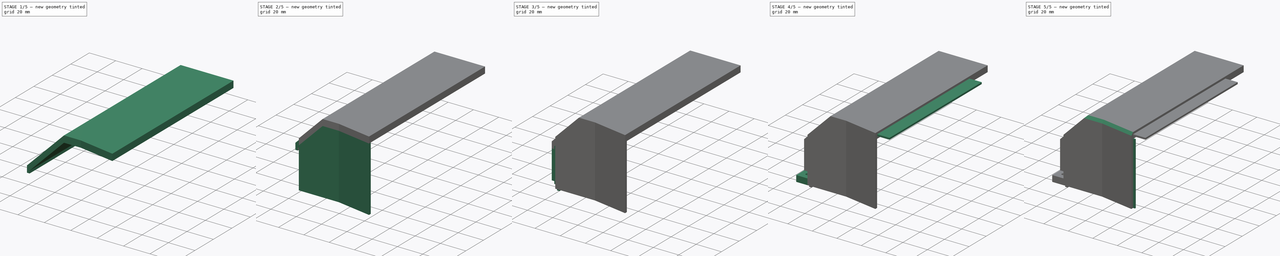
[diagram: build sequence overview — one tinted view per stage of 5, left to right]
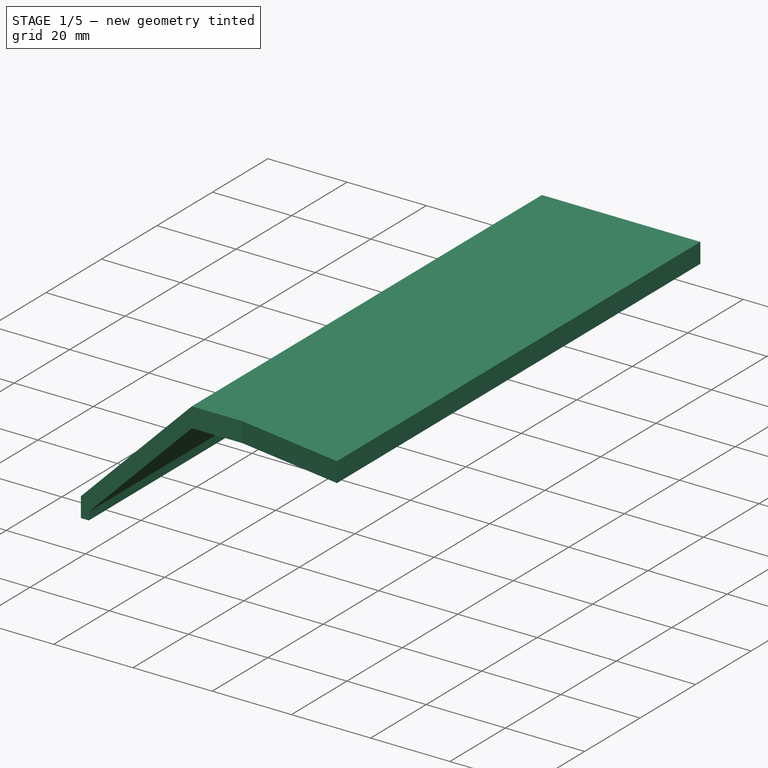
[diagram: stage 1 of 5 — iso view after this stage's code; geometry added in this stage tinted green]
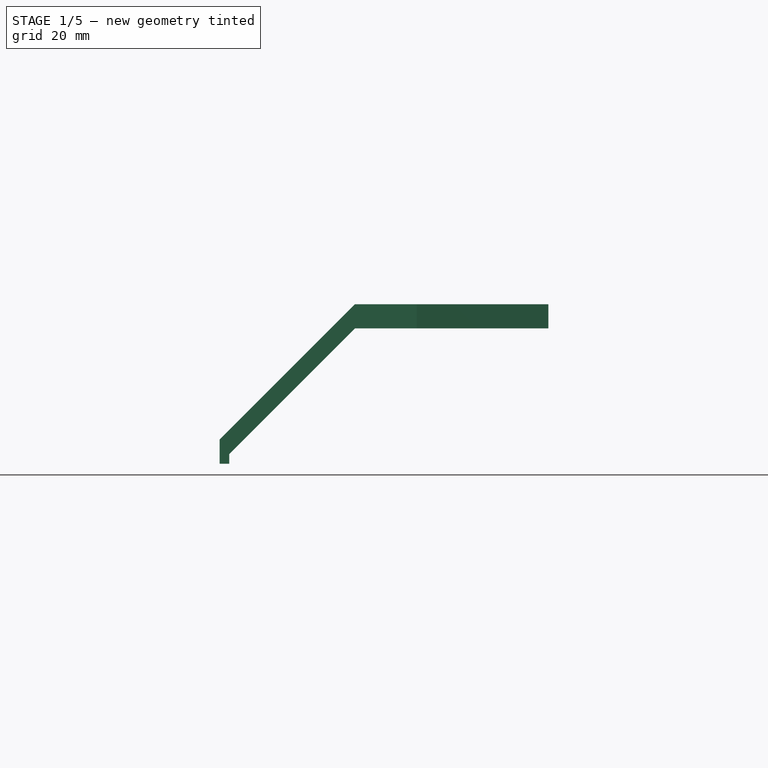
[diagram: stage 1 of 5 — front view after this stage's code; geometry added in this stage tinted green]
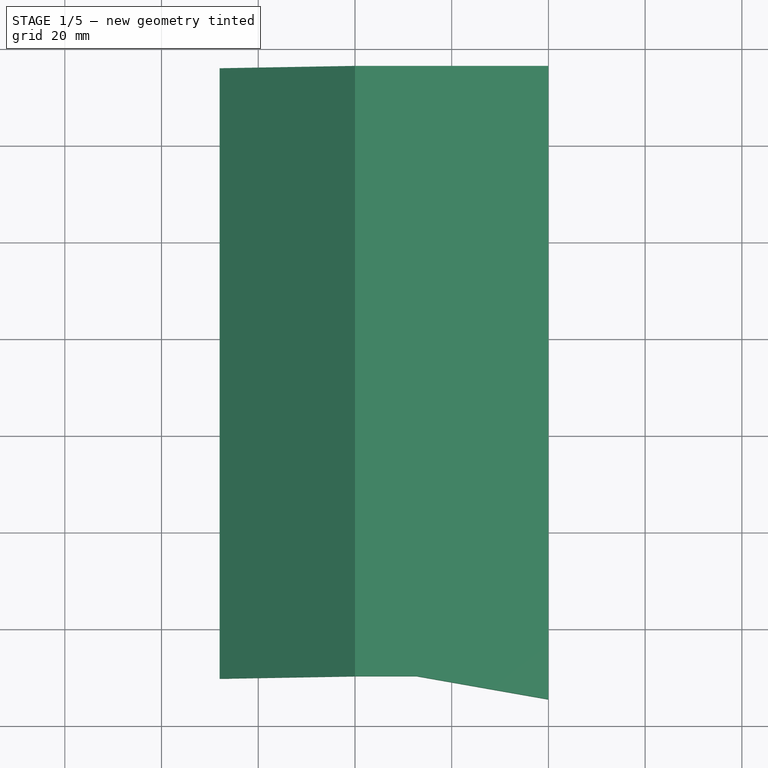
[diagram: stage 1 of 5 — top view after this stage's code; geometry added in this stage tinted green]
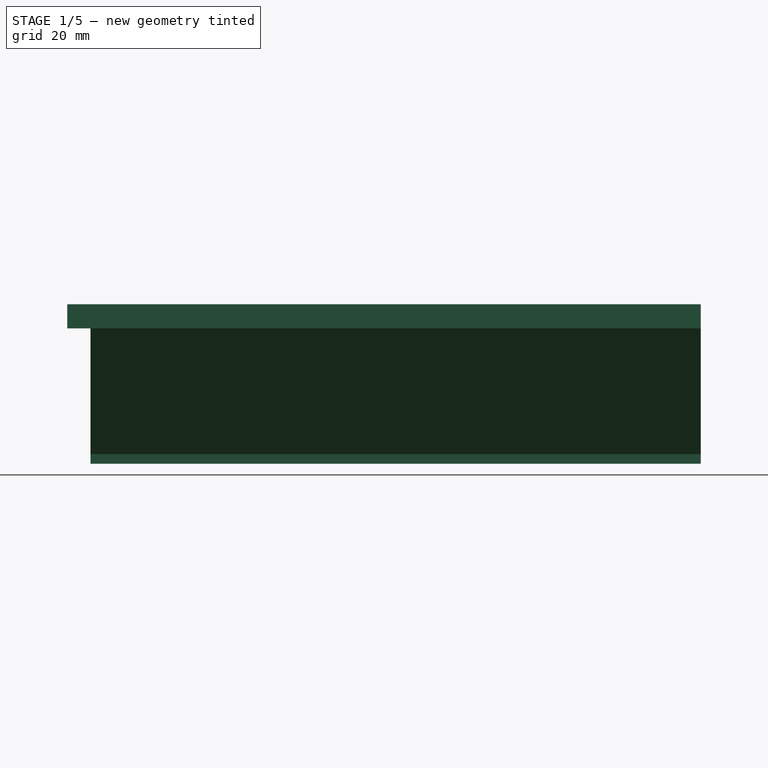
[diagram: stage 1 of 5 — right view after this stage's code; geometry added in this stage tinted green]
FCSTD DOCUMENT  (FreeCAD 2022.430R26244 +4758 (Git))
Label: SecondPartPeripheralsTop
License: All rights reserved
LicenseURL: http://en.wikipedia.org/wiki/All_rights_reserved
objects: Sketcher::SketchObject×14, PartDesign::Pad×11, PartDesign::Pocket×3, PartDesign::CoordinateSystem×1, PartDesign::Chamfer×1, PartDesign::Body×1, App::Part×1
note: 61 computed .brp shape members not serialized (recipe doc carries the construction recipe); baked Part::Feature solids carry a one-line shape summary decoded from their .brp

FEATURE [PartDesign::CoordinateSystem] LCS_0
  AttacherType = Attacher::AttachEngine3D
  MapMode = 2
  Support = -> [X_Axis001]
  TreeRank = 0
FEATURE [Sketcher::SketchObject] Sketch_1
  FullyConstrained = true
  TreeRank = 0
  sketch-geometry (4):
    g0: LineSegment StartX=0 StartY=0 StartZ=0 EndX=-40 EndY=0 EndZ=0
    g1: LineSegment StartX=-40 StartY=0 StartZ=0 EndX=-40 EndY=116 EndZ=0
    g2: LineSegment StartX=-40 StartY=116 StartZ=0 EndX=0 EndY=116 EndZ=0
    g3: LineSegment StartX=0 StartY=116 StartZ=0 EndX=0 EndY=0 EndZ=0
  constraints (11):
    c: Coincident(g0,g1)
    c: Coincident(g1,g2)
    c: Coincident(g2,g3)
    c: Coincident(g3,g0)
    c: Horizontal(g0)
    c: Horizontal(g2)
    c: Vertical(g1)
    c: Vertical(g3)
    c: Coincident(g0,g-1)
    c: DistanceY(g3,g3) = 116
    c: DistanceX(g2,g2) = 40
FEATURE [PartDesign::Pad] Pad  label="MainSupport"
  AddSubType = 0
  CheckUpToFaceLimits = true
  ClaimChildren = false
  Direction = (0,0,1)
  Fit = 0
  FitJoin = 0
  InnerFit = 0
  InnerFitJoin = 0
  InnerTaperAngle = 0
  InnerTaperAngleRev = 0
  Length = 5
  Length2 = 100
  NewSolid = false
  Profile = -> Sketch_1
  Suppress = false
  TreeRank = 0
  Type = 0
  _ProfileBasedVersion = 0
FEATURE [Sketcher::SketchObject] Sketch
  ExternalGeometry = -> [Pad]
  FullyConstrained = true
  MapMode = 5
  Support = -> [XY_Plane001]
  TreeRank = 1
  sketch-geometry (5):
    g0: LineSegment StartX=0 StartY=0 StartZ=0 EndX=-40 EndY=0 EndZ=0
    g1: LineSegment StartX=-40 StartY=0 StartZ=0 EndX=-40 EndY=-10.2 EndZ=0
    g2: LineSegment StartX=0 StartY=-15 StartZ=0 EndX=0 EndY=0 EndZ=0
    g3: LineSegment StartX=0 StartY=-15 StartZ=0 EndX=-27.2222 EndY=-10.2 EndZ=0
    g4: LineSegment StartX=-40 StartY=-10.2 StartZ=0 EndX=-27.2222 EndY=-10.2 EndZ=0
  constraints (14):
    c: Coincident(g2,g0)
    c: Vertical(g1)
    c: Vertical(g2)
    c: Coincident(g0,g-1)
    c: DistanceY(g2,g2) = 15
    c: DistanceY(g1,g1) = 10.2
    c: Coincident(g3,g2)
    c: Angle(g2,g3) = 1.39626
    c: Horizontal(g0)
    c: Coincident(g1,g0)
    c: Coincident(g4,g1)
    c: Coincident(g4,g3)
    c: Horizontal(g4)
    c: DistanceX(g0,g0) = 40
FEATURE [PartDesign::Pad] Pad001  label="ExtraPeripheralsSize"
  AddSubType = 0
  AlongSketchNormal = false
  BaseFeature = -> Pad
  CheckUpToFaceLimits = true
  ClaimChildren = false
  Direction = (0,0,1)
  Fit = 0
  FitJoin = 0
  InnerFit = 0
  InnerFitJoin = 0
  InnerTaperAngle = 0
  InnerTaperAngleRev = 0
  Length = 5
  Length2 = 100
  Linearize = true
  NewSolid = false
  Profile = -> Sketch
  Suppress = false
  TreeRank = 2
  Type = 0
  _ProfileBasedVersion = 1
FEATURE [Sketcher::SketchObject] Sketch001
  ExternalGeometry = -> [Pad001]
  FullyConstrained = true
  MapMode = 5
  Placement = pos=(0,-10.2,0) rot=(1,0,0;1.5708rad)
  Support = -> [Pad001]
  TreeRank = 3
  sketch-geometry (7):
    g0: LineSegment StartX=-40 StartY=5 StartZ=0 EndX=-68 EndY=-23 EndZ=0
    g1: LineSegment StartX=-68 StartY=-23 StartZ=0 EndX=-68 EndY=-28 EndZ=0
    g2: LineSegment StartX=-40 StartY=5 StartZ=0 EndX=-40 EndY=0 EndZ=0
    g3: LineSegment StartX=-68 StartY=-28 StartZ=0 EndX=-66 EndY=-28 EndZ=0
    g4: LineSegment StartX=-66 StartY=-28 StartZ=0 EndX=-66 EndY=-26 EndZ=0
    g5: LineSegment StartX=-40 StartY=0 StartZ=0 EndX=-66 EndY=-26 EndZ=0
    g6: LineSegment [constr] StartX=-66 StartY=-26 StartZ=0 EndX=-68 EndY=-28 EndZ=0
  constraints (19):
    c: Coincident(g0,g-3)
    c: Coincident(g5,g-3)
    c: Coincident(g1,g0)
    c: Vertical(g1)
    c: DistanceX(g0,g0) = 28
    c: Angle(g0,g-3) = 0.785398
    c: Coincident(g2,g0)
    c: Coincident(g2,g5)
    c: Equal(g2,g1)
    c: DistanceY(g1,g5) = 28
    c: Horizontal(g3)
    c: Coincident(g4,g3)
    c: Vertical(g4)
    c: Coincident(g5,g4)
    c: Coincident(g3,g1)
    c: Coincident(g6,g4)
    c: Coincident(g6,g1)
    c: Parallel(g6,g5)
    c: DistanceX(g3,g3) = 2
FEATURE [PartDesign::Pad] Pad002  label="Slope"
  AddSubType = 0
  AlongSketchNormal = false
  BaseFeature = -> Pad001
  CheckUpToFaceLimits = true
  ClaimChildren = false
  Direction = (0,-1,2e-16)
  Fit = 0
  FitJoin = 0
  InnerFit = 0
  InnerFitJoin = 0
  InnerTaperAngle = 0
  InnerTaperAngleRev = 0
  Length = 10
  Length2 = 100
  Linearize = true
  NewSolid = false
  Profile = -> Sketch001
  Reversed = true
  Suppress = false
  TreeRank = 4
  Type = 3
  UpToFace = -> Pad001 [Face3]
  _ProfileBasedVersion = 1
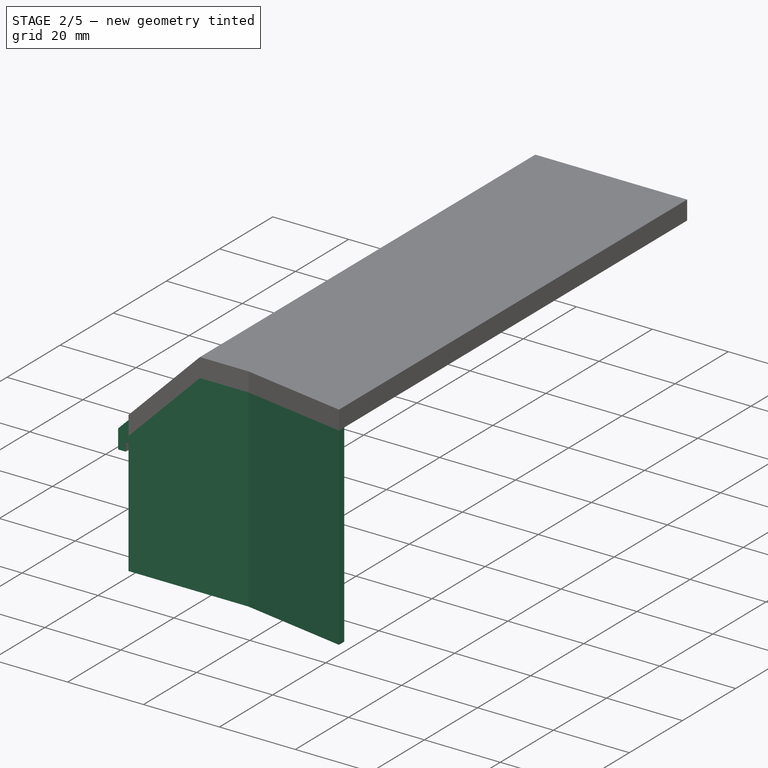
[diagram: stage 2 of 5 — iso view after this stage's code; geometry added in this stage tinted green]
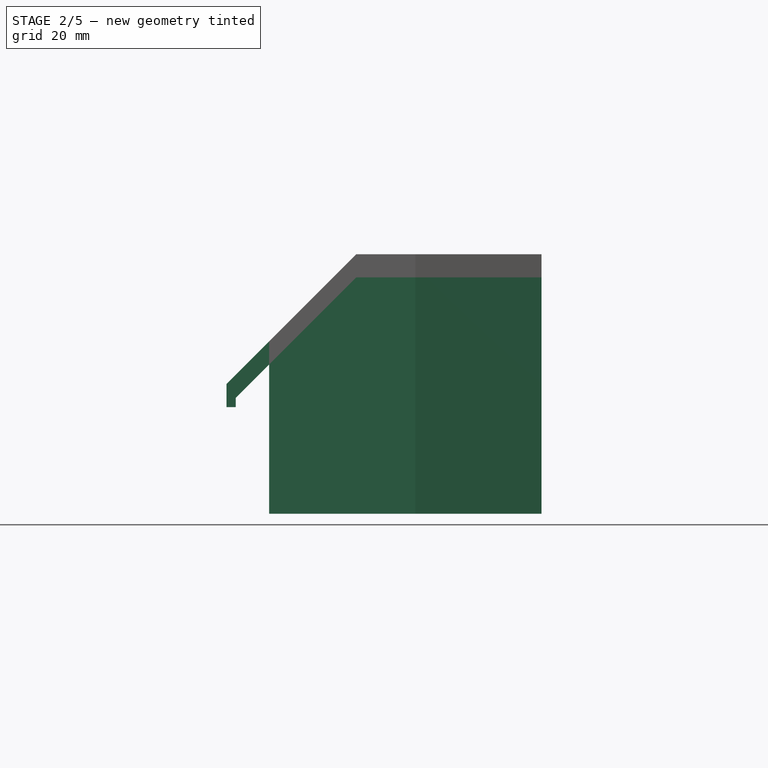
[diagram: stage 2 of 5 — front view after this stage's code; geometry added in this stage tinted green]
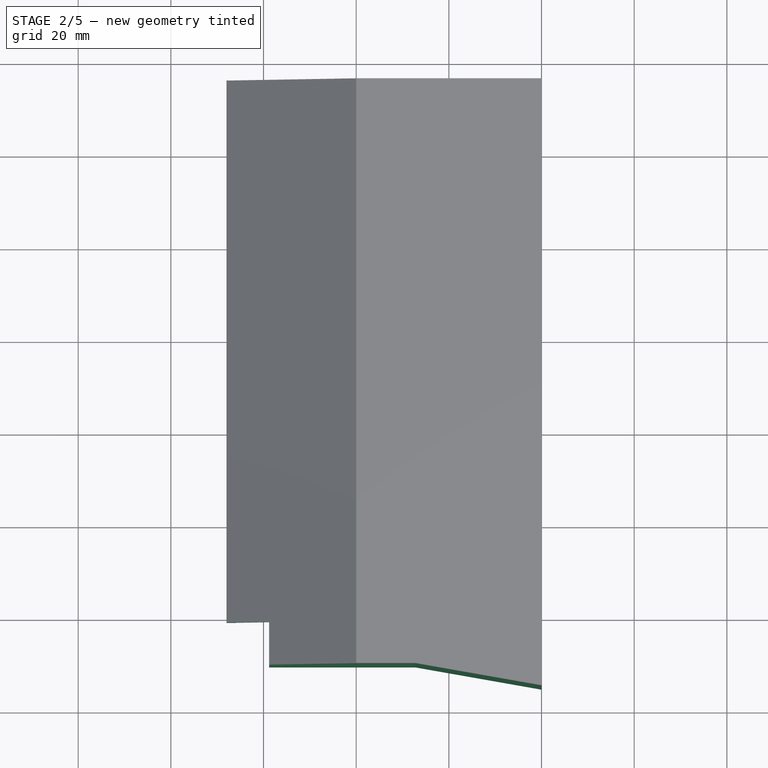
[diagram: stage 2 of 5 — top view after this stage's code; geometry added in this stage tinted green]
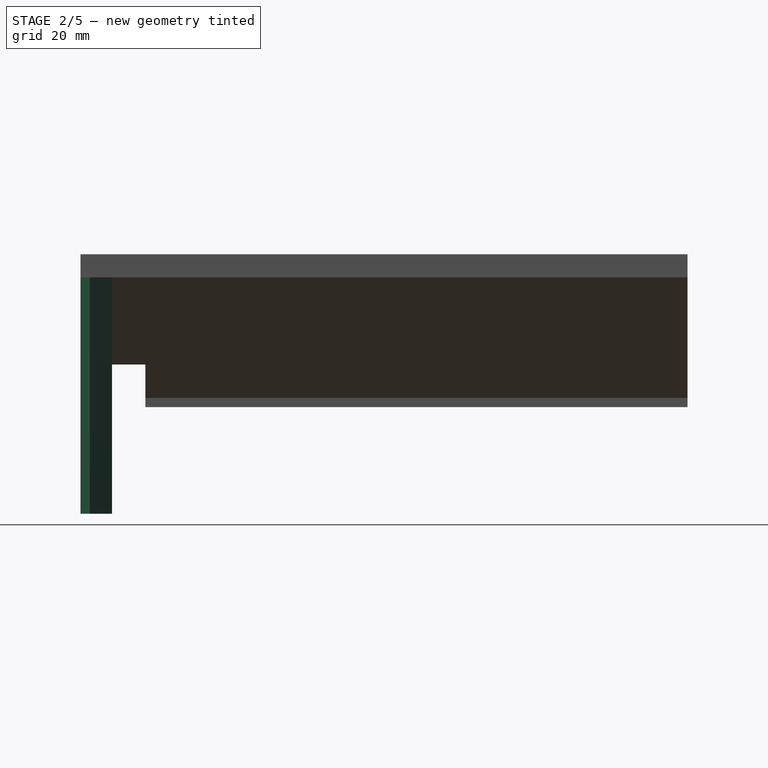
[diagram: stage 2 of 5 — right view after this stage's code; geometry added in this stage tinted green]
FEATURE [Sketcher::SketchObject] Sketch005
  ExternalGeometry = -> [Pad002]
  FullyConstrained = true
  MapMode = 5
  Placement = pos=(0,0,5) rot=(0,0,1;0rad)
  Support = -> [Pad002]
  TreeRank = 11
  sketch-geometry (4):
    g0: LineSegment StartX=-68 StartY=-10.2 StartZ=0 EndX=-58.8 EndY=-10.2 EndZ=0
    g1: LineSegment StartX=-58.8 StartY=-10.2 StartZ=0 EndX=-58.8 EndY=-1 EndZ=0
    g2: LineSegment StartX=-58.8 StartY=-1 StartZ=0 EndX=-68 EndY=-1 EndZ=0
    g3: LineSegment StartX=-68 StartY=-1 StartZ=0 EndX=-68 EndY=-10.2 EndZ=0
  constraints (11):
    c: Coincident(g0,g1)
    c: Coincident(g1,g2)
    c: Coincident(g2,g3)
    c: Coincident(g3,g0)
    c: Horizontal(g0)
    c: Horizontal(g2)
    c: Vertical(g1)
    c: Vertical(g3)
    c: Coincident(g0,g-3)
    c: Equal(g1,g2)
    c: DistanceX(g2,g2) = 9.2
FEATURE [PartDesign::Pocket] Pocket  label="ColumnPartHole"
  AddSubType = 1
  BaseFeature = -> Pad002
  CheckUpToFaceLimits = true
  ClaimChildren = false
  Fit = 0
  FitJoin = 0
  InnerFit = 0
  InnerFitJoin = 0
  InnerTaperAngle = 0
  InnerTaperAngleRev = 0
  Length = 5
  Length2 = 100
  Linearize = true
  NewSolid = false
  Profile = -> Sketch005
  Suppress = false
  TreeRank = 12
  Type = 1
  _ProfileBasedVersion = 1
  _Version = 1
FEATURE [Sketcher::SketchObject] Sketch003
  ExternalGeometry = -> [Pocket]
  FullyConstrained = true
  MapMode = 5
  Placement = pos=(0,-10.2,0) rot=(1,0,0;1.5708rad)
  TreeRank = 7
  sketch-geometry (5):
    g0: LineSegment StartX=-58.8 StartY=-51 StartZ=0 EndX=-58.8 EndY=-18.8 EndZ=0
    g1: LineSegment StartX=-58.8 StartY=-18.8 StartZ=0 EndX=-40 EndY=0 EndZ=0
    g2: LineSegment StartX=-40 StartY=0 StartZ=0 EndX=-27.2222 EndY=0 EndZ=0
    g3: LineSegment StartX=-27.2222 StartY=0 StartZ=0 EndX=-27.2222 EndY=-51 EndZ=0
    g4: LineSegment StartX=-58.8 StartY=-51 StartZ=0 EndX=-27.2222 EndY=-51 EndZ=0
  constraints (12):
    c: Coincident(g0,g-4)
    c: Coincident(g1,g0)
    c: Coincident(g1,g-4)
    c: Coincident(g2,g1)
    c: Coincident(g2,g-3)
    c: Coincident(g3,g2)
    c: Vertical(g3)
    c: Coincident(g4,g0)
    c: Horizontal(g4)
    c: Coincident(g4,g3)
    c: Vertical(g0)
    c: DistanceY(g3,g3) = 51
FEATURE [PartDesign::Pad] Pad004  label="SlopeFrontPanel"
  AddSubType = 0
  AlongSketchNormal = false
  BaseFeature = -> Pocket
  CheckUpToFaceLimits = true
  ClaimChildren = false
  Direction = (0,-1,2e-16)
  Fit = 0
  FitJoin = 0
  InnerFit = 0
  InnerFitJoin = 0
  InnerTaperAngle = 0
  InnerTaperAngleRev = 0
  Length = 2
  Length2 = 100
  Linearize = true
  NewSolid = false
  Profile = -> Sketch003
  Reversed = true
  Suppress = false
  TreeRank = 8
  Type = 0
  _ProfileBasedVersion = 1
FEATURE [Sketcher::SketchObject] Sketch004
  ExternalGeometry = -> [Pad004]
  FullyConstrained = true
  MapMode = 5
  Placement = pos=(0,0,0) rot=(1,0,0;3.14159rad)
  Support = -> [Pad004]
  TreeRank = 9
  sketch-geometry (4):
    g0: LineSegment StartX=-27.2222 StartY=10.2 StartZ=0 EndX=0 EndY=15 EndZ=0
    g1: LineSegment StartX=-27.2222 StartY=8.2 StartZ=0 EndX=-27.2222 EndY=10.2 EndZ=0
    g2: LineSegment StartX=-27.2222 StartY=8.2 StartZ=0 EndX=0 EndY=13 EndZ=0
    g3: LineSegment StartX=0 StartY=13 StartZ=0 EndX=0 EndY=15 EndZ=0
  constraints (9):
    c: Coincident(g0,g-3)
    c: Coincident(g0,g-4)
    c: Coincident(g1,g-3)
    c: Coincident(g1,g0)
    c: Coincident(g2,g1)
    c: PointOnObject(g2,g-4)
    c: Coincident(g3,g2)
    c: Coincident(g3,g0)
    c: DistanceY(g3,g3) = 2
FEATURE [PartDesign::Pad] Pad005  label="AnglePanel"
  AddSubType = 0
  AlongSketchNormal = false
  BaseFeature = -> Pad004
  CheckUpToFaceLimits = true
  ClaimChildren = false
  Direction = (0,0,-1)
  Fit = 0
  FitJoin = 0
  InnerFit = 0
  InnerFitJoin = 0
  InnerTaperAngle = 0
  InnerTaperAngleRev = 0
  Length = 51
  Length2 = 100
  Linearize = true
  NewSolid = false
  Profile = -> Sketch004
  Suppress = false
  TreeRank = 10
  Type = 0
  _ProfileBasedVersion = 1
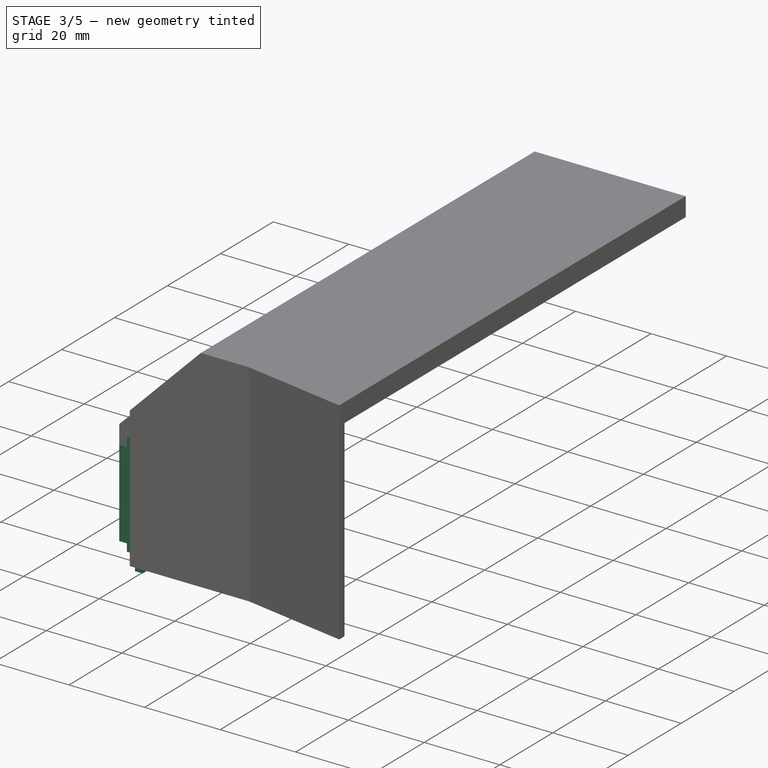
[diagram: stage 3 of 5 — iso view after this stage's code; geometry added in this stage tinted green]
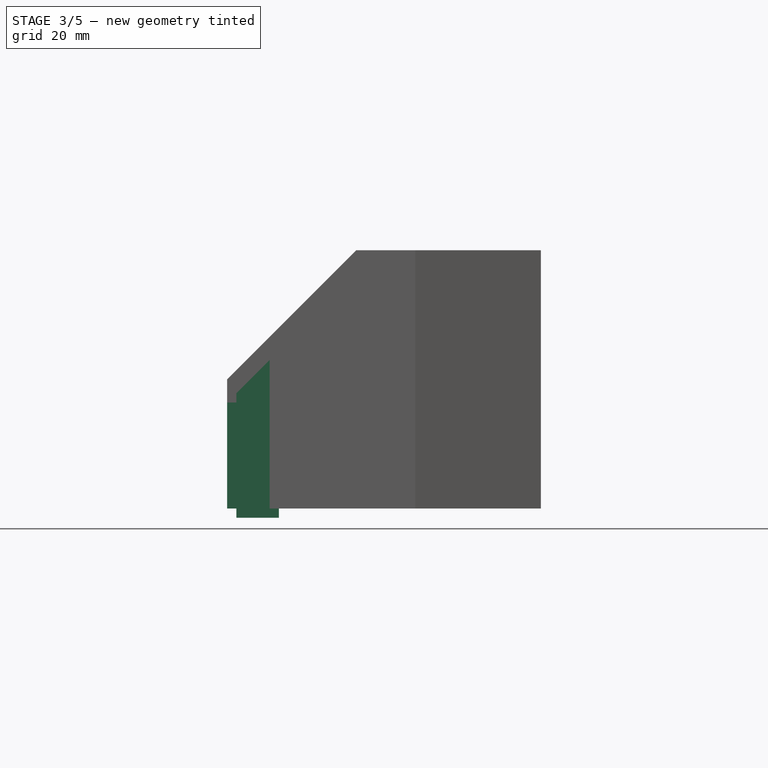
[diagram: stage 3 of 5 — front view after this stage's code; geometry added in this stage tinted green]
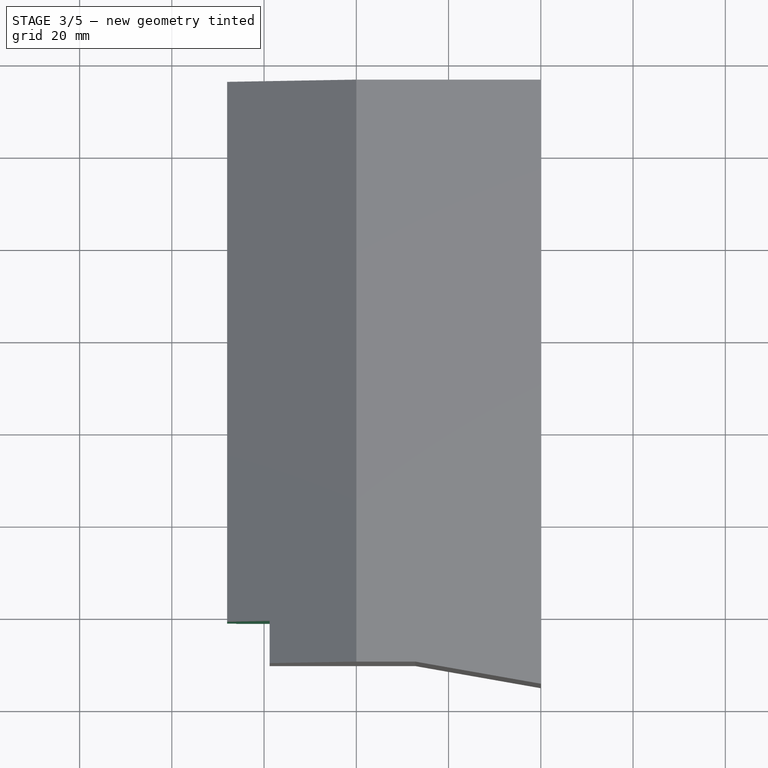
[diagram: stage 3 of 5 — top view after this stage's code; geometry added in this stage tinted green]
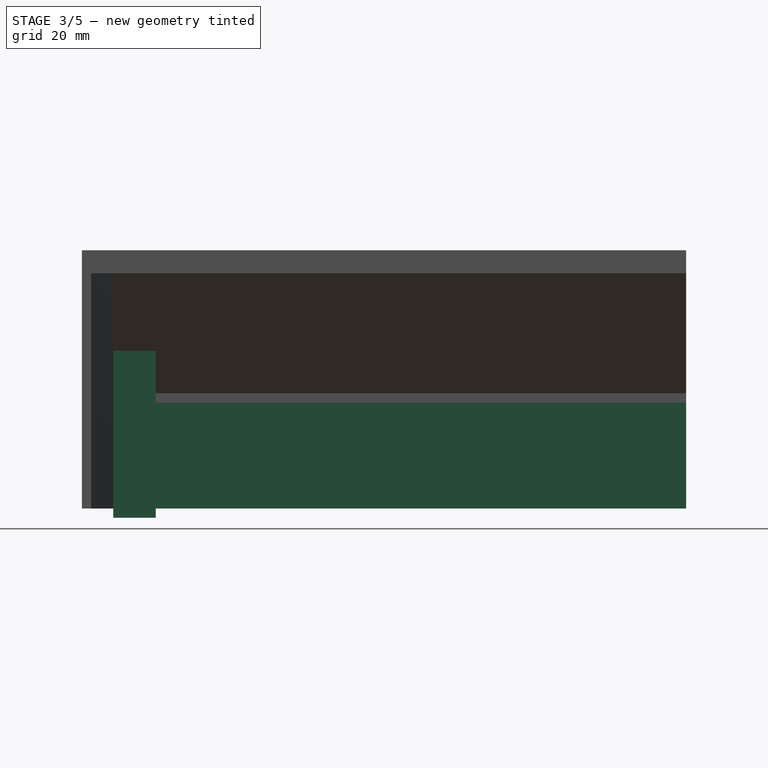
[diagram: stage 3 of 5 — right view after this stage's code; geometry added in this stage tinted green]
FEATURE [Sketcher::SketchObject] Sketch006
  ExternalGeometry = -> [Pad005]
  FullyConstrained = true
  MapMode = 5
  Placement = pos=(0,-6.2e-15,-28) rot=(1,0,0;3.14159rad)
  Support = -> [Pad005]
  TreeRank = 13
  sketch-geometry (4):
    g0: LineSegment StartX=-68 StartY=-116 StartZ=0 EndX=-66 EndY=-116 EndZ=0
    g1: LineSegment StartX=-66 StartY=-116 StartZ=0 EndX=-66 EndY=1 EndZ=0
    g2: LineSegment StartX=-66 StartY=1 StartZ=0 EndX=-68 EndY=1 EndZ=0
    g3: LineSegment StartX=-68 StartY=1 StartZ=0 EndX=-68 EndY=-116 EndZ=0
  constraints (10):
    c: Coincident(g0,g1)
    c: Coincident(g1,g2)
    c: Coincident(g2,g3)
    c: Coincident(g3,g0)
    c: Horizontal(g0)
    c: Horizontal(g2)
    c: Vertical(g1)
    c: Vertical(g3)
    c: Coincident(g0,g-4)
    c: Coincident(g1,g-3)
FEATURE [PartDesign::Pad] Pad006  label="SlopeSidePanel"
  AddSubType = 0
  AlongSketchNormal = false
  BaseFeature = -> Pad005
  CheckUpToFaceLimits = true
  ClaimChildren = false
  Direction = (0,-2e-16,-1)
  Fit = 0
  FitJoin = 0
  InnerFit = 0
  InnerFitJoin = 0
  InnerTaperAngle = 0
  InnerTaperAngleRev = 0
  Length = 10
  Length2 = 100
  Linearize = true
  NewSolid = false
  Profile = -> Sketch006
  Suppress = false
  TreeRank = 14
  Type = 3
  UpToFace = -> Pad005 [Face24]
  _ProfileBasedVersion = 1
FEATURE [Sketcher::SketchObject] Sketch007
  ExternalGeometry = -> [Pad006]
  FullyConstrained = true
  MapMode = 5
  Placement = pos=(0,-1,2e-16) rot=(1,0,0;1.5708rad)
  Support = -> [Pad006]
  TreeRank = 15
  sketch-geometry (4):
    g0: LineSegment StartX=-58.8 StartY=-18.8 StartZ=0 EndX=-66 EndY=-26 EndZ=0
    g1: LineSegment StartX=-66 StartY=-26 StartZ=0 EndX=-66 EndY=-53 EndZ=0
    g2: LineSegment StartX=-66 StartY=-53 StartZ=0 EndX=-58.8 EndY=-53 EndZ=0
    g3: LineSegment StartX=-58.8 StartY=-53 StartZ=0 EndX=-58.8 EndY=-18.8 EndZ=0
  constraints (10):
    c: Coincident(g0,g-4)
    c: Coincident(g0,g-4)
    c: Coincident(g1,g0)
    c: Coincident(g2,g1)
    c: Horizontal(g2)
    c: Coincident(g3,g2)
    c: Coincident(g3,g0)
    c: Vertical(g3)
    c: Vertical(g1)
    c: DistanceY(g1,g-3) = 2
FEATURE [PartDesign::Pad] Pad007  label="ColumnPanel1"
  AddSubType = 0
  AlongSketchNormal = false
  BaseFeature = -> Pad006
  CheckUpToFaceLimits = true
  ClaimChildren = false
  Direction = (0,-1,2e-16)
  Fit = 0
  FitJoin = 0
  InnerFit = 0
  InnerFitJoin = 0
  InnerTaperAngle = 0
  InnerTaperAngleRev = 0
  Length = 2
  Length2 = 100
  Linearize = true
  NewSolid = false
  Profile = -> Sketch007
  Reversed = true
  Suppress = false
  TreeRank = 16
  Type = 0
  _ProfileBasedVersion = 1
FEATURE [Sketcher::SketchObject] Sketch008
  ExternalGeometry = -> [Pad007]
  FullyConstrained = true
  MapMode = 5
  Placement = pos=(-1e-16,-8.2,1.7e-15) rot=(0,0.707107,0.707107;3.14159rad)
  Support = -> [Pad007]
  TreeRank = 17
  sketch-geometry (4):
    g0: LineSegment StartX=56.8 StartY=-16.8 StartZ=0 EndX=56.8 EndY=-53 EndZ=0
    g1: LineSegment StartX=56.8 StartY=-53 StartZ=0 EndX=58.8 EndY=-53 EndZ=0
    g2: LineSegment StartX=58.8 StartY=-18.8 StartZ=0 EndX=56.8 EndY=-16.8 EndZ=0
    g3: LineSegment StartX=58.8 StartY=-18.8 StartZ=0 EndX=58.8 EndY=-53 EndZ=0
  constraints (10):
    c: PointOnObject(g0,g-4)
    c: Vertical(g0)
    c: Coincident(g1,g0)
    c: Coincident(g1,g-3)
    c: Horizontal(g1)
    c: Coincident(g2,g-4)
    c: Coincident(g2,g0)
    c: Coincident(g3,g2)
    c: Coincident(g3,g1)
    c: DistanceX(g1,g1) = 2
FEATURE [PartDesign::Pad] Pad008  label="ColumnPanel2"
  AddSubType = 0
  AlongSketchNormal = false
  BaseFeature = -> Pad007
  CheckUpToFaceLimits = true
  ClaimChildren = false
  Direction = (0,1,-2e-16)
  Fit = 0
  FitJoin = 0
  InnerFit = 0
  InnerFitJoin = 0
  InnerTaperAngle = 0
  InnerTaperAngleRev = 0
  Length = 10
  Length2 = 100
  Linearize = true
  NewSolid = false
  Profile = -> Sketch008
  Suppress = false
  TreeRank = 18
  Type = 3
  UpToFace = -> Pad007 [Face20]
  _ProfileBasedVersion = 1
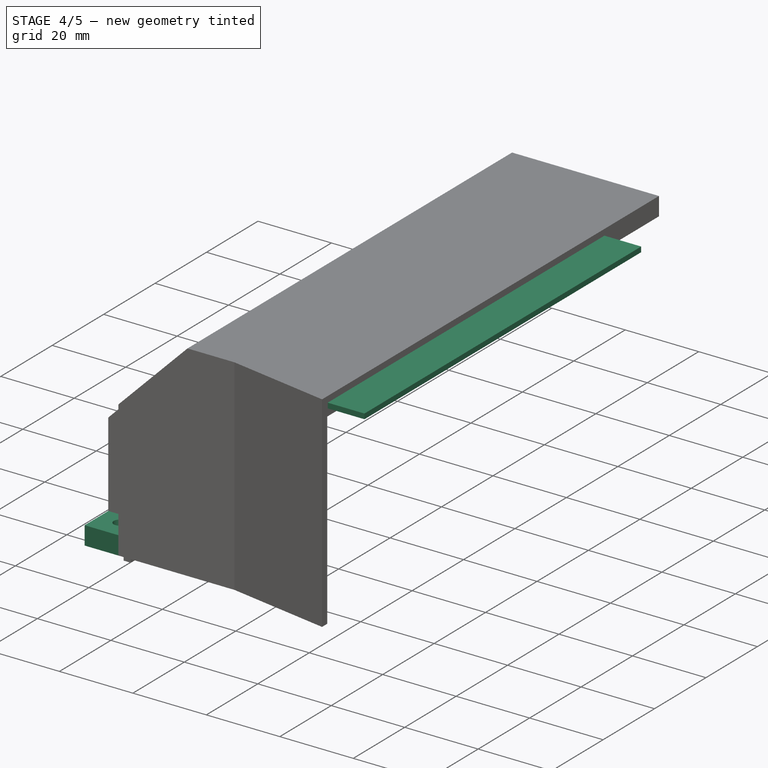
[diagram: stage 4 of 5 — iso view after this stage's code; geometry added in this stage tinted green]
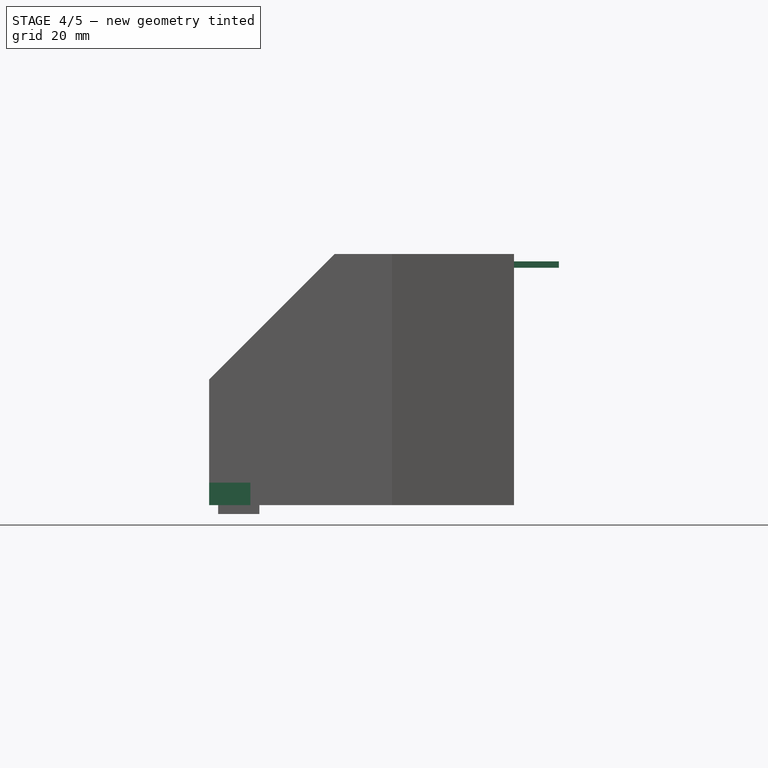
[diagram: stage 4 of 5 — front view after this stage's code; geometry added in this stage tinted green]
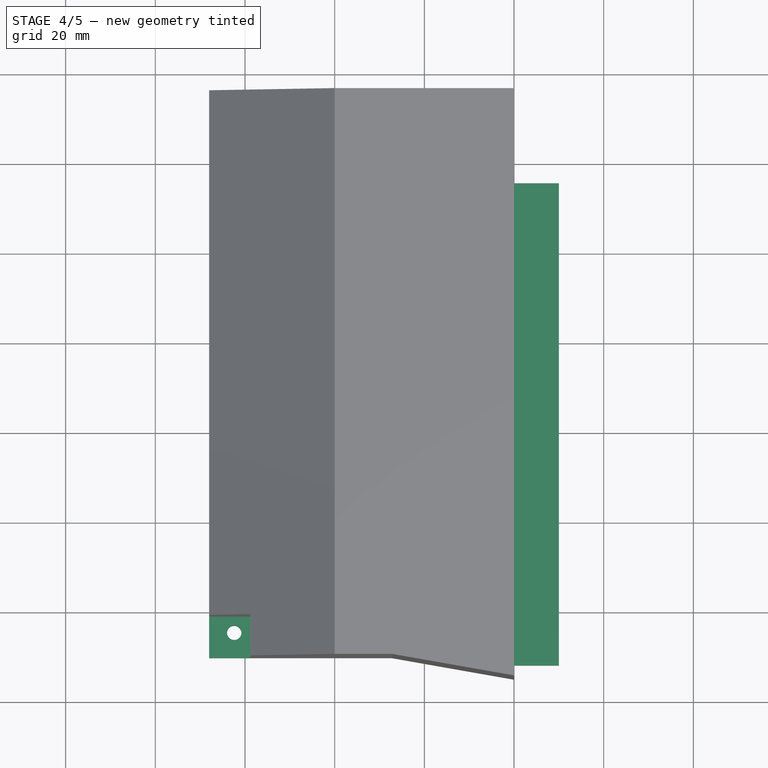
[diagram: stage 4 of 5 — top view after this stage's code; geometry added in this stage tinted green]
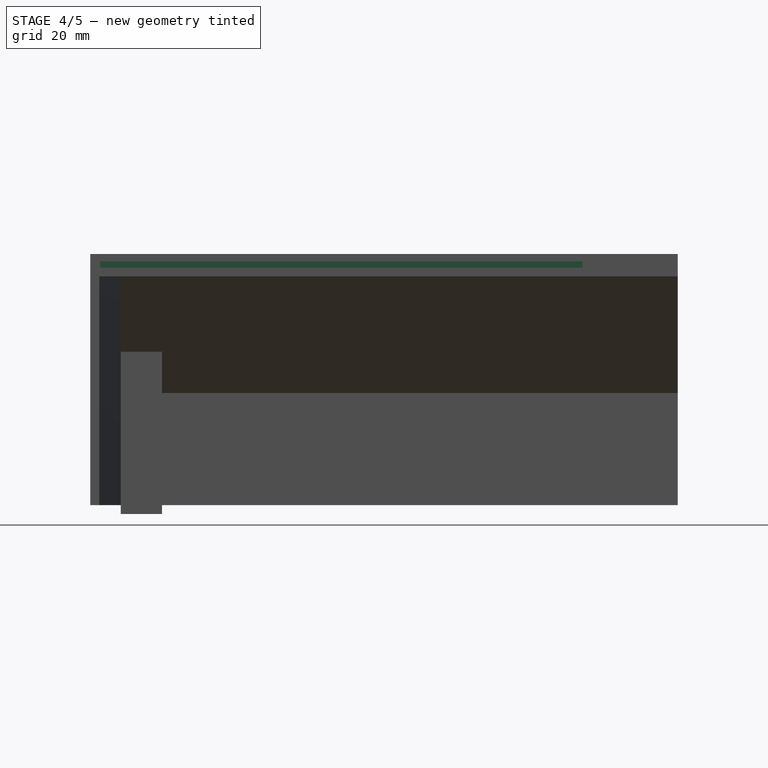
[diagram: stage 4 of 5 — right view after this stage's code; geometry added in this stage tinted green]
FEATURE [Sketcher::SketchObject] Sketch009
  ExternalGeometry = -> [Pad008]
  FullyConstrained = true
  MapMode = 5
  Placement = pos=(0,-1,2e-16) rot=(1,0,0;1.5708rad)
  Support = -> [Pad008]
  TreeRank = 19
  sketch-geometry (4):
    g0: LineSegment StartX=-68 StartY=-51 StartZ=0 EndX=-58.8 EndY=-51 EndZ=0
    g1: LineSegment StartX=-58.8 StartY=-51 StartZ=0 EndX=-58.8 EndY=-46 EndZ=0
    g2: LineSegment StartX=-58.8 StartY=-46 StartZ=0 EndX=-68 EndY=-46 EndZ=0
    g3: LineSegment StartX=-68 StartY=-46 StartZ=0 EndX=-68 EndY=-51 EndZ=0
  constraints (11):
    c: Coincident(g0,g1)
    c: Coincident(g1,g2)
    c: Coincident(g2,g3)
    c: Coincident(g3,g0)
    c: Horizontal(g0)
    c: Horizontal(g2)
    c: Vertical(g1)
    c: Vertical(g3)
    c: Coincident(g0,g-3)
    c: PointOnObject(g1,g-4)
    c: DistanceY(g3,g3) = 5
FEATURE [PartDesign::Pad] Pad009  label="HoleSupport"
  AddSubType = 0
  AlongSketchNormal = false
  BaseFeature = -> Pad008
  CheckUpToFaceLimits = true
  ClaimChildren = false
  Direction = (0,-1,2e-16)
  Fit = 0
  FitJoin = 0
  InnerFit = 0
  InnerFitJoin = 0
  InnerTaperAngle = 0
  InnerTaperAngleRev = 0
  Length = 10
  Length2 = 100
  Linearize = true
  NewSolid = false
  Profile = -> Sketch009
  Suppress = false
  TreeRank = 20
  Type = 3
  UpToFace = -> Pad008 [Face28]
  _ProfileBasedVersion = 1
FEATURE [Sketcher::SketchObject] Sketch010
  ExternalGeometry = -> [Pad009]
  FullyConstrained = true
  MapMode = 5
  Placement = pos=(0,-1.01e-14,-46) rot=(0,0,1;0rad)
  Support = -> [Pad009]
  TreeRank = 21
  sketch-geometry (3):
    g0: LineSegment [constr] StartX=-62.4 StartY=-1 StartZ=0 EndX=-62.4 EndY=-4.6 EndZ=0
    g1: LineSegment [constr] StartX=-62.4 StartY=-4.6 StartZ=0 EndX=-58.8 EndY=-4.6 EndZ=0
    g2: Circle CenterX=-62.4 CenterY=-4.6 CenterZ=0 NormalX=0 NormalY=0 NormalZ=1 AngleXU=0 Radius=1.6
  constraints (9):
    c: Vertical(g0)
    c: Coincident(g1,g0)
    c: Horizontal(g1)
    c: Coincident(g2,g0)
    c: Diameter(g2) = 3.2
    c: PointOnObject(g1,g-4)
    c: PointOnObject(g0,g-3)
    c: DistanceX(g0,g-4) = 3.6
    c: DistanceY(g1,g-4) = 3.6
FEATURE [PartDesign::Pocket] Pocket001  label="Hole"
  AddSubType = 1
  BaseFeature = -> Pad009
  CheckUpToFaceLimits = true
  ClaimChildren = false
  Fit = 0
  FitJoin = 0
  InnerFit = 0
  InnerFitJoin = 0
  InnerTaperAngle = 0
  InnerTaperAngleRev = 0
  Length = 5
  Length2 = 100
  Linearize = true
  NewSolid = false
  Profile = -> Sketch010
  Suppress = false
  TreeRank = 22
  Type = 0
  _ProfileBasedVersion = 1
  _Version = 1
FEATURE [Sketcher::SketchObject] Sketch011
  ExternalGeometry = -> [Pocket001]
  FullyConstrained = true
  MapMode = 5
  Placement = pos=(0,0,0) rot=(0.57735,0.57735,0.57735;2.0944rad)
  Support = -> [Pocket001]
  TreeRank = 23
  sketch-geometry (4):
    g0: LineSegment StartX=-12.8 StartY=3.34 StartZ=0 EndX=94.8 EndY=3.34 EndZ=0
    g1: LineSegment StartX=94.8 StartY=3.34 StartZ=0 EndX=94.8 EndY=1.94 EndZ=0
    g2: LineSegment StartX=94.8 StartY=1.94 StartZ=0 EndX=-12.8 EndY=1.94 EndZ=0
    g3: LineSegment StartX=-12.8 StartY=1.94 StartZ=0 EndX=-12.8 EndY=3.34 EndZ=0
  constraints (12):
    c: Coincident(g0,g1)
    c: Coincident(g1,g2)
    c: Coincident(g2,g3)
    c: Coincident(g3,g0)
    c: Horizontal(g0)
    c: Horizontal(g2)
    c: Vertical(g1)
    c: Vertical(g3)
    c: DistanceY(g-3,g2) = 1.94
    c: DistanceX(g-3,g0) = 2.2
    c: DistanceY(g3,g3) = 1.4
    c: DistanceX(g0,g-4) = 21.2
FEATURE [PartDesign::Pad] Pad010  label="Puzzle1"
  AddSubType = 0
  AlongSketchNormal = false
  BaseFeature = -> Pocket001
  CheckUpToFaceLimits = true
  ClaimChildren = false
  Direction = (1,0,0)
  Fit = 0
  FitJoin = 0
  InnerFit = 0
  InnerFitJoin = 0
  InnerTaperAngle = 0
  InnerTaperAngleRev = 0
  Length = 10
  Length2 = 100
  Linearize = true
  NewSolid = false
  Profile = -> Sketch011
  Suppress = false
  TreeRank = 24
  Type = 0
  _ProfileBasedVersion = 1
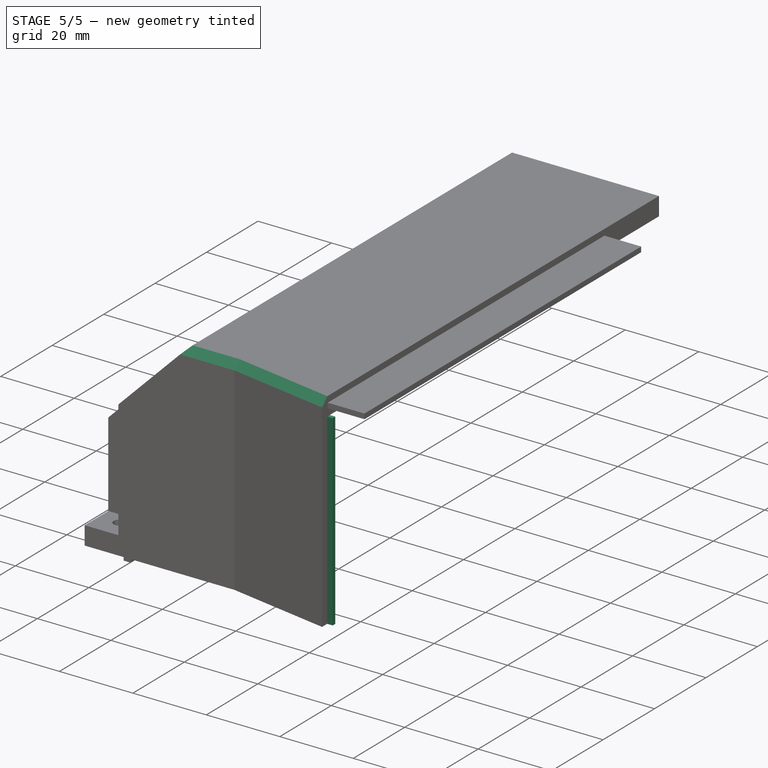
[diagram: stage 5 of 5 — iso view after this stage's code; geometry added in this stage tinted green]
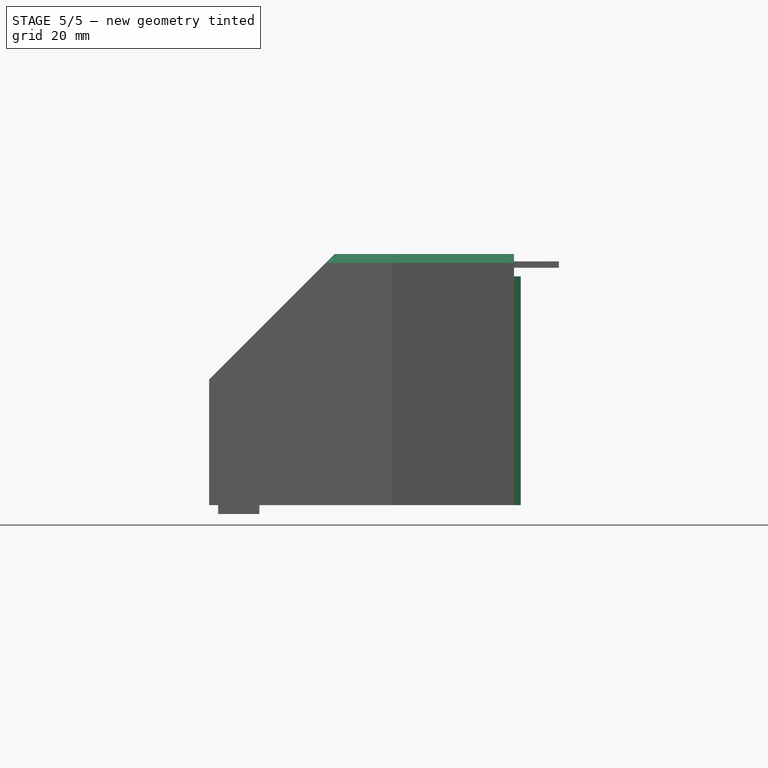
[diagram: stage 5 of 5 — front view after this stage's code; geometry added in this stage tinted green]
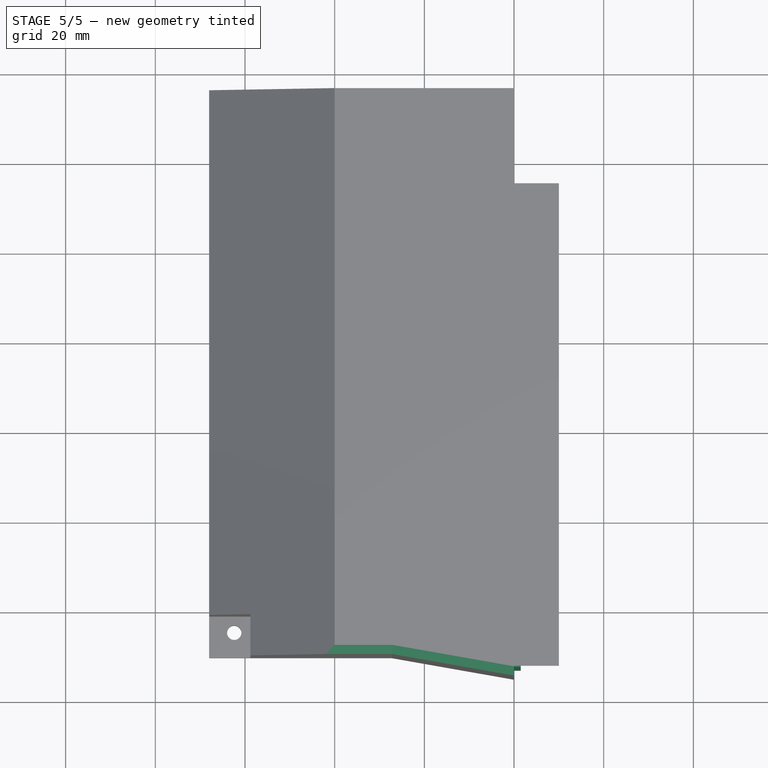
[diagram: stage 5 of 5 — top view after this stage's code; geometry added in this stage tinted green]
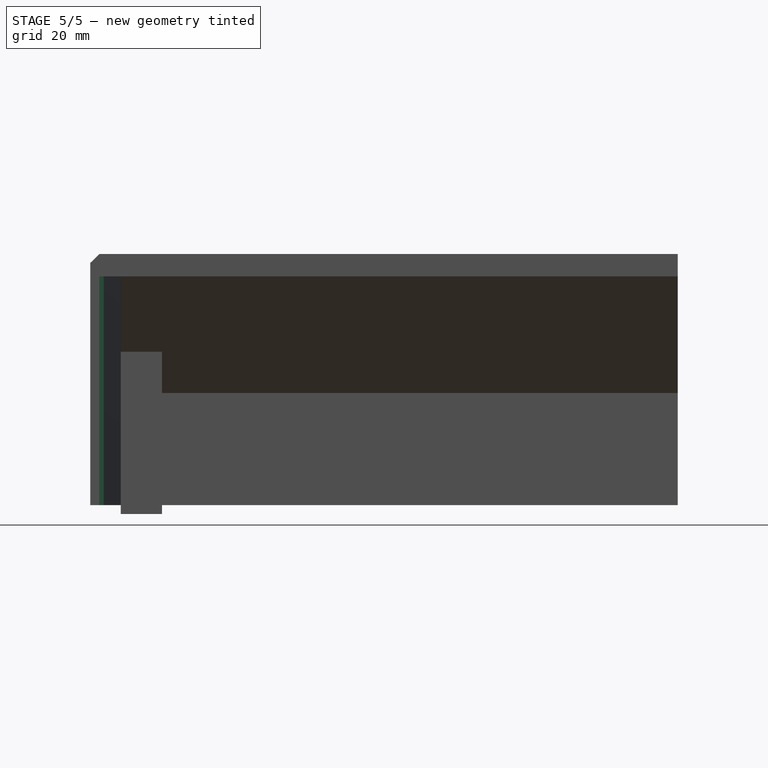
[diagram: stage 5 of 5 — right view after this stage's code; geometry added in this stage tinted green]
FEATURE [Sketcher::SketchObject] Sketch012
  ExternalGeometry = -> [Pad010]
  FullyConstrained = true
  MapMode = 5
  Placement = pos=(0,116,0) rot=(0,0.707107,0.707107;3.14159rad)
  Support = -> [Pad010]
  TreeRank = 25
  sketch-geometry (4):
    g0: LineSegment StartX=10.95 StartY=3.58 StartZ=0 EndX=29.05 EndY=3.58 EndZ=0
    g1: LineSegment StartX=29.05 StartY=3.58 StartZ=0 EndX=29.05 EndY=1.5 EndZ=0
    g2: LineSegment StartX=29.05 StartY=1.5 StartZ=0 EndX=10.95 EndY=1.5 EndZ=0
    g3: LineSegment StartX=10.95 StartY=1.5 StartZ=0 EndX=10.95 EndY=3.58 EndZ=0
  constraints (12):
    c: Coincident(g0,g1)
    c: Coincident(g1,g2)
    c: Coincident(g2,g3)
    c: Coincident(g3,g0)
    c: Horizontal(g0)
    c: Horizontal(g2)
    c: Vertical(g1)
    c: Vertical(g3)
    c: DistanceY(g-3,g2) = 1.5
    c: DistanceY(g3,g3) = 2.08
    c: DistanceX(g-3,g0) = 10.95
    c: DistanceX(g0,g-4) = 10.95
FEATURE [PartDesign::Pocket] Pocket002  label="PuzzleHole1"
  AddSubType = 1
  BaseFeature = -> Pad010
  CheckUpToFaceLimits = true
  ClaimChildren = false
  Fit = 0
  FitJoin = 0
  InnerFit = 0
  InnerFitJoin = 0
  InnerTaperAngle = 0
  InnerTaperAngleRev = 0
  Length = 11
  Length2 = 100
  Linearize = true
  NewSolid = false
  Profile = -> Sketch012
  Suppress = false
  TreeRank = 26
  Type = 0
  _ProfileBasedVersion = 1
  _Version = 1
FEATURE [PartDesign::Chamfer] Chamfer
  AddSubType = 0
  Angle = 45
  Base = -> Pocket002 [Edge55,Edge54]
  BaseFeature = -> Pocket002
  ChamferType = 0
  FlipDirection = false
  NewSolid = false
  Size = 2
  Size2 = 1
  SupportTransform = false
  Suppress = false
  TreeRank = 27
FEATURE [Sketcher::SketchObject] Sketch013
  ExternalGeometry = -> [Chamfer]
  FullyConstrained = true
  MapMode = 5
  Placement = pos=(0,0,0) rot=(1,0,0;3.14159rad)
  Support = -> [Chamfer]
  TreeRank = 28
  sketch-geometry (4):
    g0: LineSegment StartX=-5.67128 StartY=12 StartZ=0 EndX=1.5 EndY=12 EndZ=0
    g1: LineSegment StartX=1.5 StartY=12 StartZ=0 EndX=1.5 EndY=13 EndZ=0
    g2: LineSegment StartX=0 StartY=13 StartZ=0 EndX=1.5 EndY=13 EndZ=0
    g3: LineSegment StartX=-5.67128 StartY=12 StartZ=0 EndX=0 EndY=13 EndZ=0
  constraints (11):
    c: PointOnObject(g0,g-3)
    c: Horizontal(g0)
    c: Coincident(g1,g0)
    c: Vertical(g1)
    c: Coincident(g2,g-3)
    c: Coincident(g2,g1)
    c: Horizontal(g2)
    c: DistanceY(g1,g1) = 1
    c: DistanceX(g2,g2) = 1.5
    c: Coincident(g3,g0)
    c: Coincident(g3,g2)
FEATURE [PartDesign::Pad] Pad011  label="PanelGuard"
  AddSubType = 0
  AlongSketchNormal = false
  BaseFeature = -> Chamfer
  CheckUpToFaceLimits = true
  ClaimChildren = false
  Direction = (0,0,-1)
  Fit = 0
  FitJoin = 0
  InnerFit = 0
  InnerFitJoin = 0
  InnerTaperAngle = 0
  InnerTaperAngleRev = 0
  Length = 10
  Length2 = 100
  Linearize = true
  NewSolid = false
  Profile = -> Sketch013
  Suppress = false
  TreeRank = 29
  Type = 3
  UpToFace = -> Chamfer [Face48]
  _ProfileBasedVersion = 1
FEATURE [PartDesign::Body] Body
  AutoGroupSolids = false
  ClaimAllChildren = false
  ExportMode = 0
  Group = -> [LCS_0,Sketch_1,Pad,Sketch,Pad001,Sketch001,Pad002,Pocket,Sketch005,Sketch003,Pad004,Sketch004,Pad005,Sketch006,Pad006,Sketch007,Pad007,Sketch008,Pad008,Sketch009,Pad009,Sketch010,Pocket001,Sketch011,Pad010,Sketch012,Pocket002,Chamfer,Sketch013,Pad011]
  Origin = -> Origin001
  Tip = -> Pad011
  TreeRank = 0
  _ExportChildren = -> [LCS_0,Pad,Pad001,Pad002,Pocket,Pad004,Pad005,Pad006,Pad007,Pad008,Pad009,Pocket001,Pad010,Pocket002,Chamfer,Pad011]
  _GroupVersion = 1
FEATURE [App::Part] Part  label="SecondPartPeripheralsTop"
  ClaimAllChildren = false
  ExportMode = 1
  Group = -> [Body]
  Origin = -> Origin
  TreeRank = 0
  _ExportChildren = -> [Body]
  _GroupVersion = 1
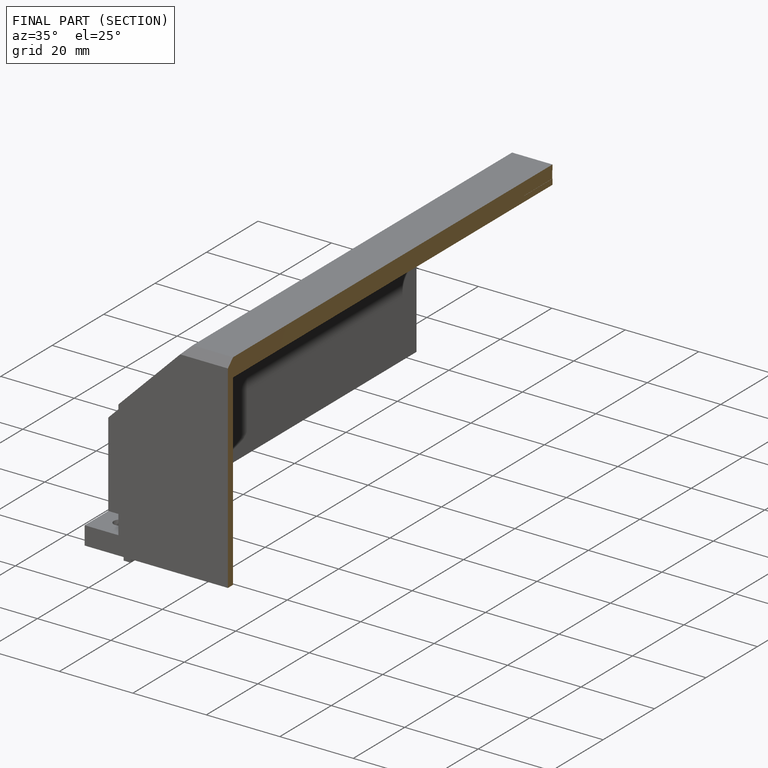
[diagram: finished part — half-section view (interior)]
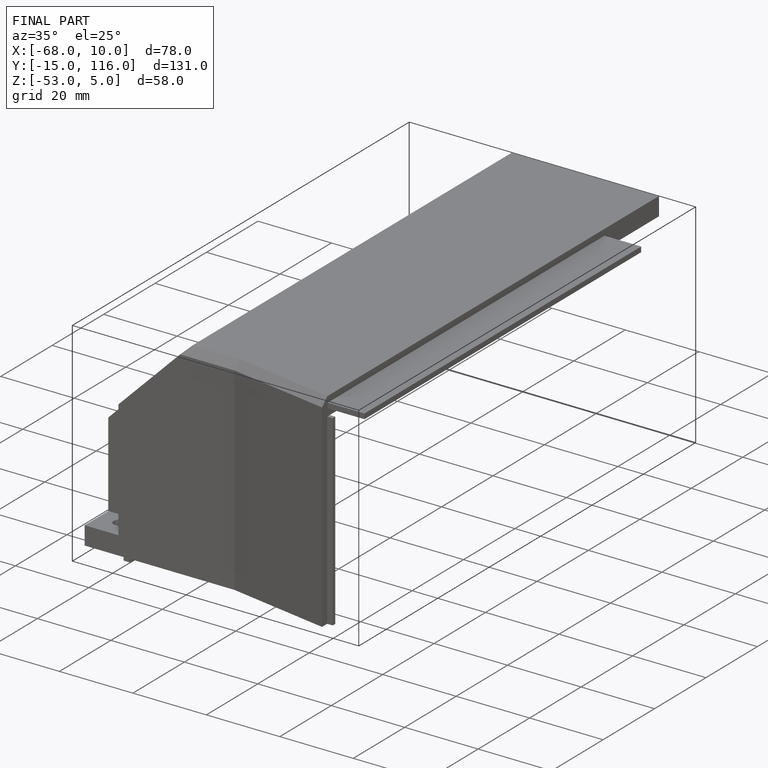
[diagram: finished part — iso view with bounding-box wireframe]
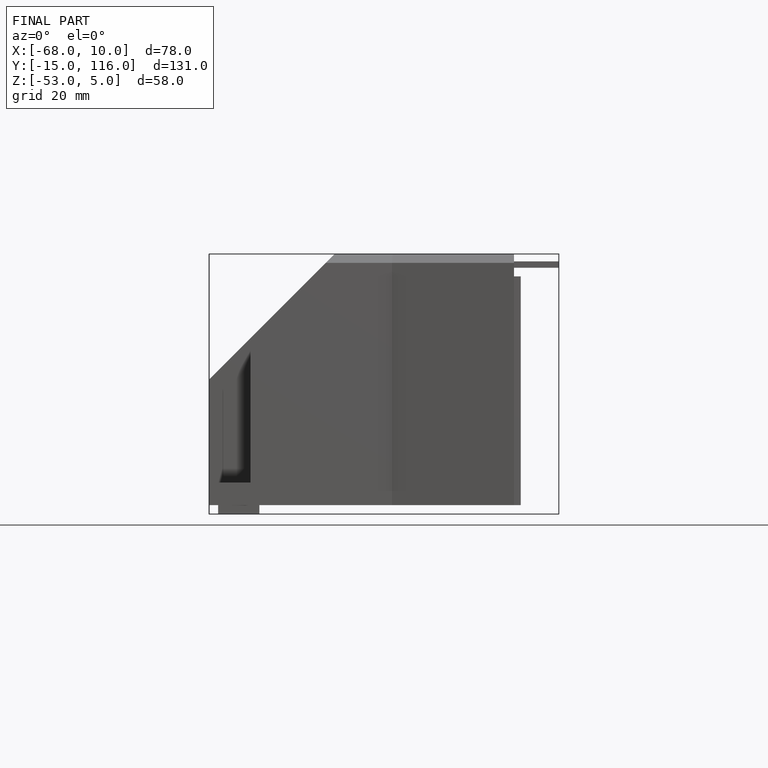
[diagram: finished part — front view with bounding-box wireframe]
